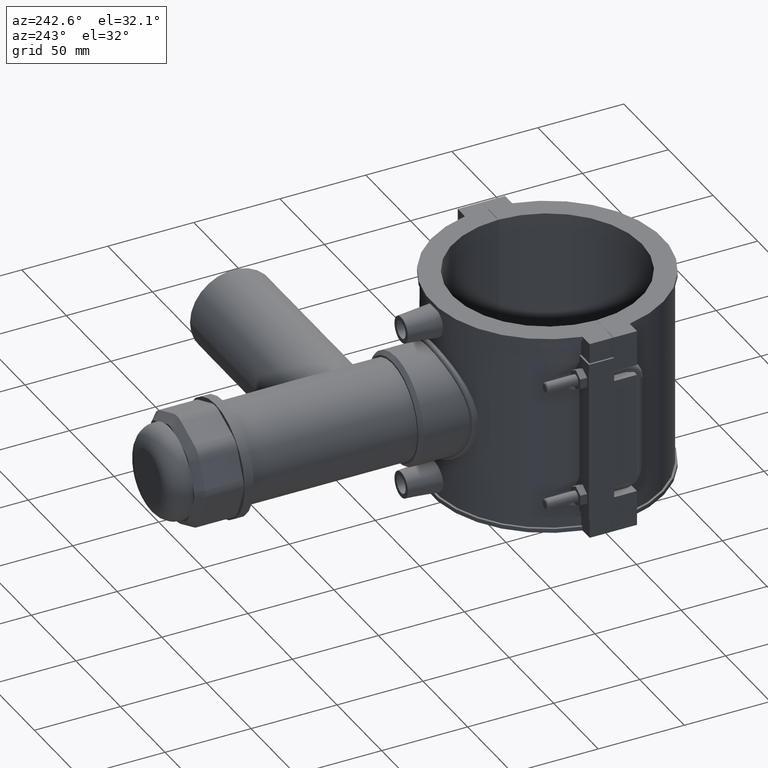
[diagram: clean part render]
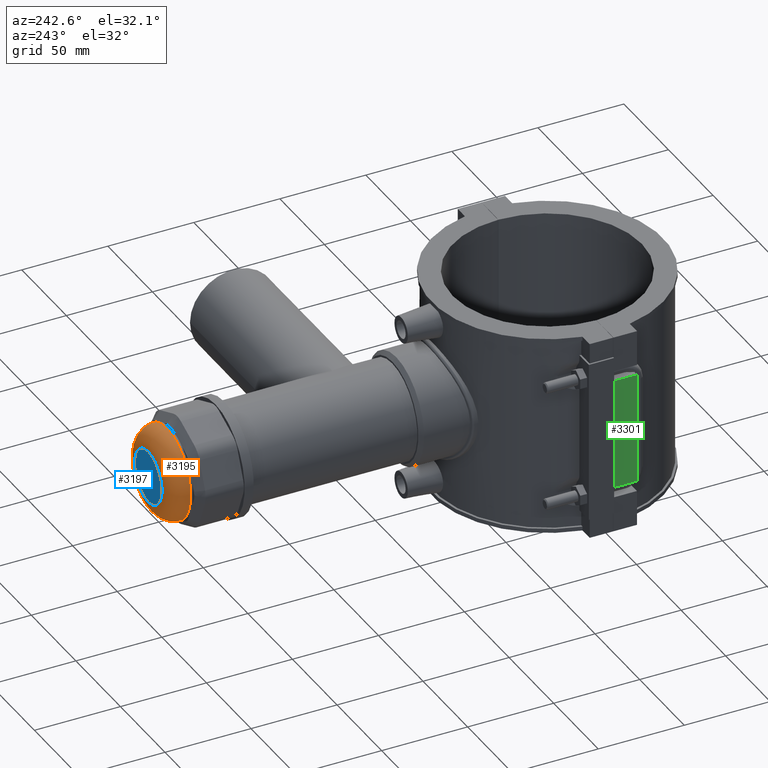
[diagram: same view with three faces highlighted in distinct colors, each labeled with its STEP entity id]
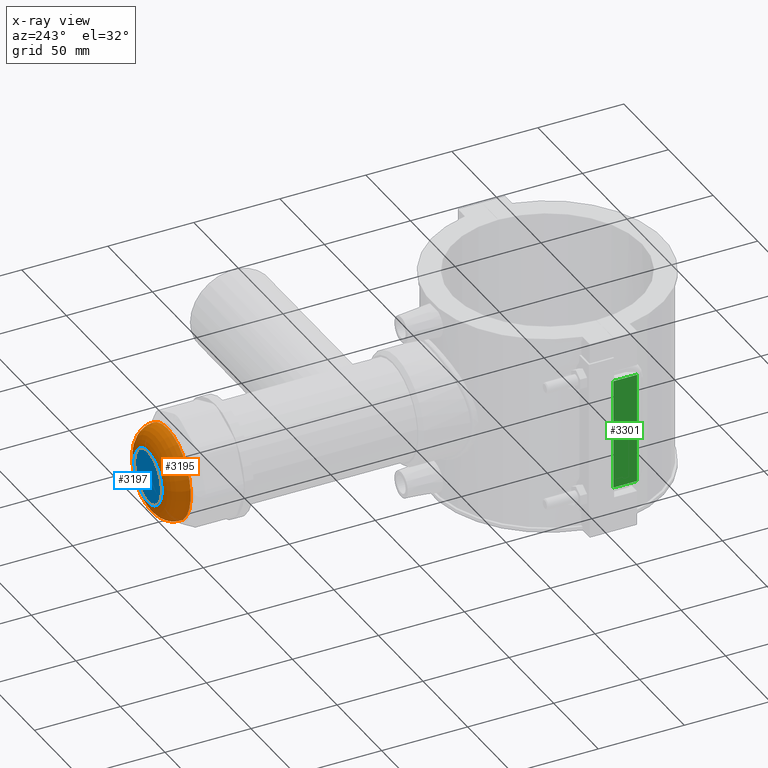
[diagram: x-ray of the same camera — body ghosted, the three highlighted faces saturated]
A machine part, auxiliary view with three faces highlighted in distinct colors.
The next image is the same camera in x-ray (body ghosted, the three faces saturated) — at least one of them is partly hidden behind the body in this view.
Their STEP definitions:

[orange] entity #3195 — the highlighted toroidal blend (fillet) surface has major radius 15.4 mm and minor (blend) radius 11 mm.
#20=TOROIDAL_SURFACE('',#3430,15.4,11.);
#630=FACE_BOUND('',#1016,.T.);
#815=FACE_OUTER_BOUND('',#1015,.T.);
#1015=EDGE_LOOP('',(#2258));
#1016=EDGE_LOOP('',(#2259));
#1251=CIRCLE('',#3431,26.4);
#1252=CIRCLE('',#3432,15.4);
#1401=VERTEX_POINT('',#5038);
#1402=VERTEX_POINT('',#5040);
#1742=EDGE_CURVE('',#1401,#1401,#1251,.T.);
#1743=EDGE_CURVE('',#1402,#1402,#1252,.T.);
#2258=ORIENTED_EDGE('',*,*,#1742,.T.);
#2259=ORIENTED_EDGE('',*,*,#1743,.T.);
#3195=ADVANCED_FACE('',(#815,#630),#20,.T.);
#3430=AXIS2_PLACEMENT_3D('',#5037,#3876,#3877);
#3431=AXIS2_PLACEMENT_3D('',#5039,#3878,#3879);
#3432=AXIS2_PLACEMENT_3D('',#5041,#3880,#3881);
#3876=DIRECTION('center_axis',(0.,1.,3.06161699786838E-16));
#3877=DIRECTION('ref_axis',(0.,0.,1.));
#3878=DIRECTION('center_axis',(0.,1.,3.06161699786838E-16));
#3879=DIRECTION('ref_axis',(6.12323399573677E-17,3.36431219583381E-16,-1.));
#3880=DIRECTION('center_axis',(0.,-1.,-3.06161699786838E-16));
#3881=DIRECTION('ref_axis',(6.12323399573677E-17,3.06161699786838E-16,-1.));
#5037=CARTESIAN_POINT('Origin',(0.,221.,5.08228421646152E-14));
#5038=CARTESIAN_POINT('',(1.61653377487451E-15,221.,26.4));
#5039=CARTESIAN_POINT('Origin',(0.,221.,5.08228421646152E-14));
#5040=CARTESIAN_POINT('',(-2.82893410603038E-15,232.,15.4));
#5041=CARTESIAN_POINT('Origin',(0.,232.,5.41906208622704E-14));

[blue] entity #3197 — the highlighted planar face has unit normal (0, 1, 0).
#817=FACE_OUTER_BOUND('',#1019,.T.);
#1019=EDGE_LOOP('',(#2277));
#1252=CIRCLE('',#3432,15.4);
#1402=VERTEX_POINT('',#5040);
#1743=EDGE_CURVE('',#1402,#1402,#1252,.T.);
#2277=ORIENTED_EDGE('',*,*,#1743,.F.);
#3060=PLANE('',#3435);
#3197=ADVANCED_FACE('',(#817),#3060,.T.);
#3432=AXIS2_PLACEMENT_3D('',#5041,#3880,#3881);
#3435=AXIS2_PLACEMENT_3D('',#5044,#3886,#3887);
#3880=DIRECTION('center_axis',(0.,-1.,-3.06161699786838E-16));
#3881=DIRECTION('ref_axis',(6.12323399573677E-17,3.06161699786838E-16,-1.));
#3886=DIRECTION('center_axis',(0.,1.,3.06161699786838E-16));
#3887=DIRECTION('ref_axis',(0.,0.,1.));
#5040=CARTESIAN_POINT('',(-2.82893410603038E-15,232.,15.4));
#5041=CARTESIAN_POINT('Origin',(0.,232.,5.41906208622704E-14));
#5044=CARTESIAN_POINT('Origin',(0.,232.,5.41906208622704E-14));

[green] entity #3301 — the highlighted planar face has unit normal (-1, 0, 0).
#251=LINE('',#6415,#538);
#254=LINE('',#6420,#541);
#256=LINE('',#6424,#543);
#271=LINE('',#6456,#558);
#538=VECTOR('',#4342,13.7);
#541=VECTOR('',#4347,64.8);
#543=VECTOR('',#4351,13.7);
#558=VECTOR('',#4386,64.8);
#921=FACE_OUTER_BOUND('',#1157,.T.);
#1157=EDGE_LOOP('',(#2778,#2779,#2780,#2781));
#1587=VERTEX_POINT('',#6412);
#1588=VERTEX_POINT('',#6414);
#1589=VERTEX_POINT('',#6418);
#1590=VERTEX_POINT('',#6422);
#1995=EDGE_CURVE('',#1588,#1587,#251,.T.);
#1998=EDGE_CURVE('',#1587,#1589,#254,.T.);
#2000=EDGE_CURVE('',#1589,#1590,#256,.T.);
#2017=EDGE_CURVE('',#1590,#1588,#271,.T.);
#2778=ORIENTED_EDGE('',*,*,#2000,.T.);
#2779=ORIENTED_EDGE('',*,*,#2017,.T.);
#2780=ORIENTED_EDGE('',*,*,#1995,.T.);
#2781=ORIENTED_EDGE('',*,*,#1998,.T.);
#3124=PLANE('',#3595);
#3301=ADVANCED_FACE('',(#921),#3124,.T.);
#3595=AXIS2_PLACEMENT_3D('',#6455,#4384,#4385);
#4342=DIRECTION('',(0.,-1.,0.));
#4347=DIRECTION('',(0.,0.,1.));
#4351=DIRECTION('',(0.,1.,0.));
#4384=DIRECTION('center_axis',(-1.,0.,0.));
#4385=DIRECTION('ref_axis',(0.,-1.,0.));
#4386=DIRECTION('',(0.,0.,-1.));
#6412=CARTESIAN_POINT('',(-74.,-13.75,-32.4));
#6414=CARTESIAN_POINT('',(-74.,-0.0500000000000078,-32.4));
#6415=CARTESIAN_POINT('',(-74.,3.33066907387547E-15,-32.4));
#6418=CARTESIAN_POINT('',(-74.,-13.75,32.4));
#6420=CARTESIAN_POINT('',(-74.,-13.75,0.));
#6422=CARTESIAN_POINT('',(-74.,-0.0500000000000078,32.4));
#6424=CARTESIAN_POINT('',(-74.,3.33066907387547E-15,32.4));
#6455=CARTESIAN_POINT('Origin',(-74.,13.75,0.));
#6456=CARTESIAN_POINT('',(-74.,-0.0500000000000078,-29.5));